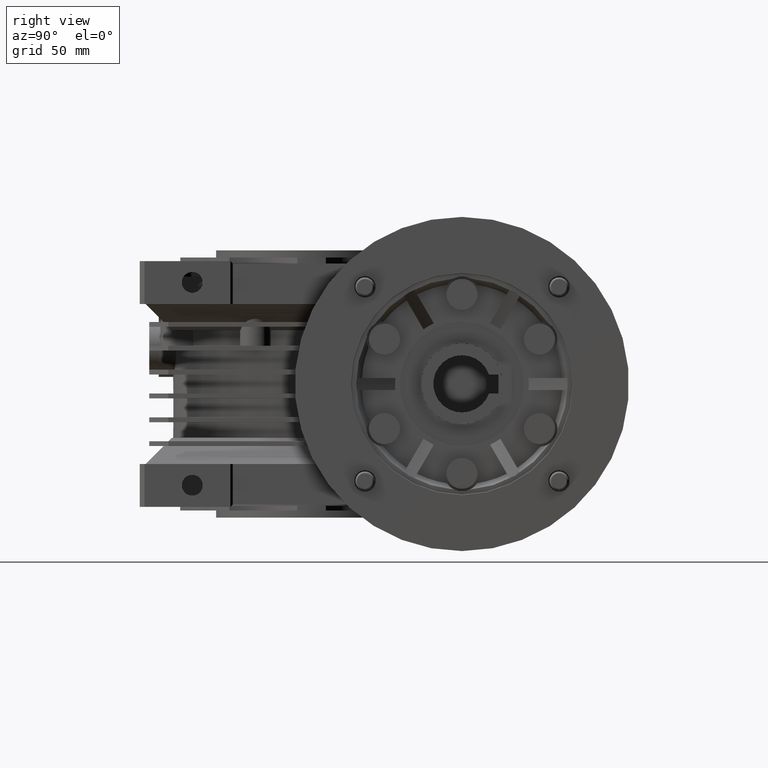
[diagram: clean part render]
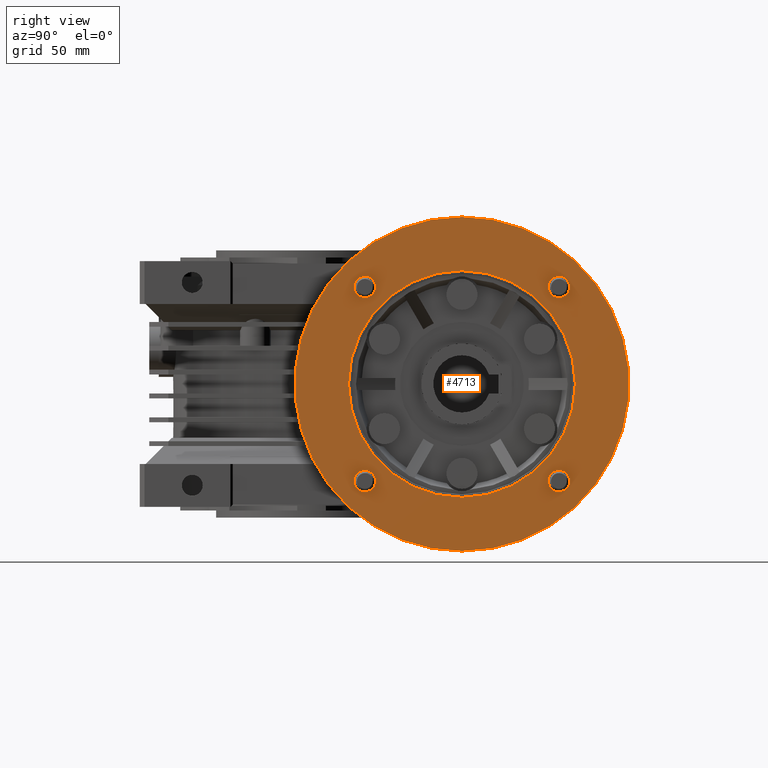
[diagram: same view with one face highlighted and labeled with its STEP entity id]
A machine part, right view. The second image highlights one B-rep face of the part: STEP entity #4713.
In plain terms, the highlighted planar face has unit normal (-1, 0, 0).
Its self-contained STEP definition (entity closure, byte-faithful):
#90 = CARTESIAN_POINT ( 'NONE',  ( 95.00000000000000000, 133.0000000000000000, 0.000000000000000000 ) ) ;
#337 = CARTESIAN_POINT ( 'NONE',  ( 95.00000000000000000, 63.00000000000000000, 70.00000000000000000 ) ) ;
#596 = CARTESIAN_POINT ( 'NONE',  ( 95.00000000000000000, 103.6586399182241962, 40.65863991822639889 ) ) ;
#950 = EDGE_LOOP ( 'NONE', ( #18745, #21503 ) ) ;
#951 = VERTEX_POINT ( 'NONE', #10805 ) ;
#2312 = CARTESIAN_POINT ( 'NONE',  ( 95.00000000000000000, 63.00000000000000000, 0.000000000000000000 ) ) ;
#2704 = DIRECTION ( 'NONE',  ( 0.000000000000000000, 0.000000000000000000, 1.000000000000000000 ) ) ;
#2951 = DIRECTION ( 'NONE',  ( 0.000000000000000000, 0.000000000000000000, -1.000000000000000000 ) ) ;
#3094 = CIRCLE ( 'NONE', #15854, 4.500000000001683098 ) ;
#3257 = CIRCLE ( 'NONE', #11753, 4.499999999999997335 ) ;
#3343 = DIRECTION ( 'NONE',  ( -1.000000000000000000, 0.000000000000000000, 0.000000000000000000 ) ) ;
#3645 = VERTEX_POINT ( 'NONE', #337 ) ;
#3651 = FACE_BOUND ( 'NONE', #38215, .T. ) ;
#3909 = DIRECTION ( 'NONE',  ( 0.000000000000000000, 0.000000000000000000, -1.000000000000000000 ) ) ;
#4047 = ORIENTED_EDGE ( 'NONE', *, *, #25720, .F. ) ;
#4667 = EDGE_CURVE ( 'NONE', #9629, #16189, #7327, .T. ) ;
#4713 = ADVANCED_FACE ( 'NONE', ( #37262, #43532, #40427, #20551, #3651, #12987 ), #43958, .F. ) ;
#4900 = CIRCLE ( 'NONE', #26232, 4.500000000002453149 ) ;
#5074 = CARTESIAN_POINT ( 'NONE',  ( 95.00000000000000000, 22.34136008177130250, 40.65863991822429568 ) ) ;
#5279 = EDGE_LOOP ( 'NONE', ( #36938, #30893 ) ) ;
#5871 = DIRECTION ( 'NONE',  ( 1.000000000000000000, 0.000000000000000000, 0.000000000000000000 ) ) ;
#7327 = CIRCLE ( 'NONE', #27966, 4.499999999999428013 ) ;
#7735 = DIRECTION ( 'NONE',  ( 1.000000000000000000, 0.000000000000000000, 0.000000000000000000 ) ) ;
#8374 = EDGE_CURVE ( 'NONE', #34865, #37835, #43813, .T. ) ;
#9629 = VERTEX_POINT ( 'NONE', #28656 ) ;
#9844 = EDGE_CURVE ( 'NONE', #951, #13078, #31907, .T. ) ;
#9926 = CARTESIAN_POINT ( 'NONE',  ( 95.00000000000000000, 103.6586399182264131, -40.65863991822655521 ) ) ;
#10805 = CARTESIAN_POINT ( 'NONE',  ( 95.00000000000000000, 63.00000000000000000, 47.50000000000000000 ) ) ;
#11500 = DIRECTION ( 'NONE',  ( 0.000000000000000000, 0.000000000000000000, -1.000000000000000000 ) ) ;
#11731 = EDGE_LOOP ( 'NONE', ( #24421, #34603 ) ) ;
#11753 = AXIS2_PLACEMENT_3D ( 'NONE', #12161, #7735, #11500 ) ;
#12069 = EDGE_CURVE ( 'NONE', #32055, #3645, #20301, .T. ) ;
#12161 = CARTESIAN_POINT ( 'NONE',  ( 95.00000000000000000, 103.6586399182264131, -40.65863991822655521 ) ) ;
#12675 = AXIS2_PLACEMENT_3D ( 'NONE', #2312, #5871, #16096 ) ;
#12987 = FACE_OUTER_BOUND ( 'NONE', #21300, .T. ) ;
#13078 = VERTEX_POINT ( 'NONE', #14745 ) ;
#13212 = CARTESIAN_POINT ( 'NONE',  ( 95.00000000000000000, 22.34136008177130250, 36.15863991822261880 ) ) ;
#13248 = CARTESIAN_POINT ( 'NONE',  ( 95.00000000000000000, 103.6586399182264131, -36.15863991822655521 ) ) ;
#13375 = CARTESIAN_POINT ( 'NONE',  ( 95.00000000000000000, 22.34136008177130250, 45.15863991822597967 ) ) ;
#14402 = DIRECTION ( 'NONE',  ( 1.000000000000000000, 0.000000000000000000, 0.000000000000000000 ) ) ;
#14745 = CARTESIAN_POINT ( 'NONE',  ( 95.00000000000000000, 63.00000000000000000, -47.50000000000000000 ) ) ;
#14842 = DIRECTION ( 'NONE',  ( 0.000000000000000000, 0.000000000000000000, 1.000000000000000000 ) ) ;
#15854 = AXIS2_PLACEMENT_3D ( 'NONE', #5074, #42039, #42701 ) ;
#16096 = DIRECTION ( 'NONE',  ( 0.000000000000000000, 0.000000000000000000, 1.000000000000000000 ) ) ;
#16157 = CIRCLE ( 'NONE', #21824, 70.00000000000000000 ) ;
#16189 = VERTEX_POINT ( 'NONE', #22946 ) ;
#16671 = VERTEX_POINT ( 'NONE', #13212 ) ;
#16877 = VERTEX_POINT ( 'NONE', #17869 ) ;
#17337 = AXIS2_PLACEMENT_3D ( 'NONE', #25884, #39489, #2951 ) ;
#17670 = DIRECTION ( 'NONE',  ( 1.000000000000000000, 0.000000000000000000, 0.000000000000000000 ) ) ;
#17869 = CARTESIAN_POINT ( 'NONE',  ( 95.00000000000000000, 103.6586399182241962, 36.15863991822394752 ) ) ;
#18113 = DIRECTION ( 'NONE',  ( -1.000000000000000000, 0.000000000000000000, 0.000000000000000000 ) ) ;
#18745 = ORIENTED_EDGE ( 'NONE', *, *, #21380, .F. ) ;
#18750 = EDGE_CURVE ( 'NONE', #16189, #9629, #29276, .T. ) ;
#18982 = CIRCLE ( 'NONE', #43872, 4.500000000002453149 ) ;
#19460 = DIRECTION ( 'NONE',  ( 0.000000000000000000, 0.000000000000000000, -1.000000000000000000 ) ) ;
#20301 = CIRCLE ( 'NONE', #30283, 70.00000000000000000 ) ;
#20551 = FACE_BOUND ( 'NONE', #950, .T. ) ;
#20654 = AXIS2_PLACEMENT_3D ( 'NONE', #21992, #14402, #14842 ) ;
#21300 = EDGE_LOOP ( 'NONE', ( #28009, #41160 ) ) ;
#21380 = EDGE_CURVE ( 'NONE', #16671, #22387, #36561, .T. ) ;
#21503 = ORIENTED_EDGE ( 'NONE', *, *, #31240, .F. ) ;
#21824 = AXIS2_PLACEMENT_3D ( 'NONE', #40532, #3343, #2704 ) ;
#21992 = CARTESIAN_POINT ( 'NONE',  ( 95.00000000000000000, 63.00000000000000000, 0.000000000000000000 ) ) ;
#22387 = VERTEX_POINT ( 'NONE', #13375 ) ;
#22868 = EDGE_CURVE ( 'NONE', #37835, #34865, #3257, .T. ) ;
#22946 = CARTESIAN_POINT ( 'NONE',  ( 95.00000000000000000, 22.34136008177345190, -36.15863991822921975 ) ) ;
#23263 = DIRECTION ( 'NONE',  ( -1.000000000000000000, 0.000000000000000000, 0.000000000000000000 ) ) ;
#23678 = DIRECTION ( 'NONE',  ( 0.000000000000000000, 0.000000000000000000, -1.000000000000000000 ) ) ;
#23703 = AXIS2_PLACEMENT_3D ( 'NONE', #90, #23263, #27243 ) ;
#24091 = EDGE_CURVE ( 'NONE', #16877, #35189, #18982, .T. ) ;
#24356 = AXIS2_PLACEMENT_3D ( 'NONE', #29697, #35489, #19460 ) ;
#24421 = ORIENTED_EDGE ( 'NONE', *, *, #9844, .F. ) ;
#24580 = AXIS2_PLACEMENT_3D ( 'NONE', #9926, #34415, #3909 ) ;
#24720 = EDGE_CURVE ( 'NONE', #3645, #32055, #16157, .T. ) ;
#25386 = CARTESIAN_POINT ( 'NONE',  ( 95.00000000000000000, 63.00000000000001421, -70.00000000000000000 ) ) ;
#25720 = EDGE_CURVE ( 'NONE', #35189, #16877, #4900, .T. ) ;
#25884 = CARTESIAN_POINT ( 'NONE',  ( 95.00000000000000000, 22.34136008177130250, 40.65863991822429568 ) ) ;
#26232 = AXIS2_PLACEMENT_3D ( 'NONE', #38165, #17670, #27470 ) ;
#27243 = DIRECTION ( 'NONE',  ( 0.000000000000000000, 0.000000000000000000, 1.000000000000000000 ) ) ;
#27470 = DIRECTION ( 'NONE',  ( 0.000000000000000000, 0.000000000000000000, -1.000000000000000000 ) ) ;
#27813 = EDGE_CURVE ( 'NONE', #13078, #951, #40583, .T. ) ;
#27889 = CARTESIAN_POINT ( 'NONE',  ( 95.00000000000000000, 103.6586399182264131, -45.15863991822654810 ) ) ;
#27959 = DIRECTION ( 'NONE',  ( 1.000000000000000000, 0.000000000000000000, 0.000000000000000000 ) ) ;
#27966 = AXIS2_PLACEMENT_3D ( 'NONE', #33322, #33724, #23678 ) ;
#28009 = ORIENTED_EDGE ( 'NONE', *, *, #24720, .F. ) ;
#28656 = CARTESIAN_POINT ( 'NONE',  ( 95.00000000000000000, 22.34136008177345190, -45.15863991822807577 ) ) ;
#29276 = CIRCLE ( 'NONE', #24356, 4.499999999999428013 ) ;
#29697 = CARTESIAN_POINT ( 'NONE',  ( 95.00000000000000000, 22.34136008177345190, -40.65863991822865131 ) ) ;
#29884 = CARTESIAN_POINT ( 'NONE',  ( 95.00000000000000000, 103.6586399182241962, 45.15863991822885737 ) ) ;
#30283 = AXIS2_PLACEMENT_3D ( 'NONE', #41954, #18113, #31711 ) ;
#30893 = ORIENTED_EDGE ( 'NONE', *, *, #22868, .F. ) ;
#31240 = EDGE_CURVE ( 'NONE', #22387, #16671, #3094, .T. ) ;
#31711 = DIRECTION ( 'NONE',  ( 0.000000000000000000, 0.000000000000000000, 1.000000000000000000 ) ) ;
#31907 = CIRCLE ( 'NONE', #12675, 47.50000000000000000 ) ;
#32055 = VERTEX_POINT ( 'NONE', #25386 ) ;
#33199 = ORIENTED_EDGE ( 'NONE', *, *, #24091, .F. ) ;
#33322 = CARTESIAN_POINT ( 'NONE',  ( 95.00000000000000000, 22.34136008177345190, -40.65863991822865131 ) ) ;
#33724 = DIRECTION ( 'NONE',  ( 1.000000000000000000, 0.000000000000000000, 0.000000000000000000 ) ) ;
#34415 = DIRECTION ( 'NONE',  ( 1.000000000000000000, 0.000000000000000000, 0.000000000000000000 ) ) ;
#34603 = ORIENTED_EDGE ( 'NONE', *, *, #27813, .F. ) ;
#34865 = VERTEX_POINT ( 'NONE', #27889 ) ;
#35189 = VERTEX_POINT ( 'NONE', #29884 ) ;
#35489 = DIRECTION ( 'NONE',  ( 1.000000000000000000, 0.000000000000000000, 0.000000000000000000 ) ) ;
#36561 = CIRCLE ( 'NONE', #17337, 4.500000000001683098 ) ;
#36938 = ORIENTED_EDGE ( 'NONE', *, *, #8374, .F. ) ;
#37262 = FACE_BOUND ( 'NONE', #11731, .T. ) ;
#37835 = VERTEX_POINT ( 'NONE', #13248 ) ;
#37990 = ORIENTED_EDGE ( 'NONE', *, *, #4667, .F. ) ;
#38165 = CARTESIAN_POINT ( 'NONE',  ( 95.00000000000000000, 103.6586399182241962, 40.65863991822639889 ) ) ;
#38215 = EDGE_LOOP ( 'NONE', ( #33199, #4047 ) ) ;
#39489 = DIRECTION ( 'NONE',  ( 1.000000000000000000, 0.000000000000000000, 0.000000000000000000 ) ) ;
#40427 = FACE_BOUND ( 'NONE', #41805, .T. ) ;
#40532 = CARTESIAN_POINT ( 'NONE',  ( 95.00000000000000000, 63.00000000000000000, 0.000000000000000000 ) ) ;
#40583 = CIRCLE ( 'NONE', #20654, 47.50000000000000000 ) ;
#41160 = ORIENTED_EDGE ( 'NONE', *, *, #12069, .F. ) ;
#41328 = DIRECTION ( 'NONE',  ( 0.000000000000000000, 0.000000000000000000, -1.000000000000000000 ) ) ;
#41805 = EDGE_LOOP ( 'NONE', ( #37990, #42923 ) ) ;
#41954 = CARTESIAN_POINT ( 'NONE',  ( 95.00000000000000000, 63.00000000000000000, 0.000000000000000000 ) ) ;
#42039 = DIRECTION ( 'NONE',  ( 1.000000000000000000, 0.000000000000000000, 0.000000000000000000 ) ) ;
#42701 = DIRECTION ( 'NONE',  ( 0.000000000000000000, 0.000000000000000000, -1.000000000000000000 ) ) ;
#42923 = ORIENTED_EDGE ( 'NONE', *, *, #18750, .F. ) ;
#43532 = FACE_BOUND ( 'NONE', #5279, .T. ) ;
#43813 = CIRCLE ( 'NONE', #24580, 4.499999999999997335 ) ;
#43872 = AXIS2_PLACEMENT_3D ( 'NONE', #596, #27959, #41328 ) ;
#43958 = PLANE ( 'NONE',  #23703 ) ;